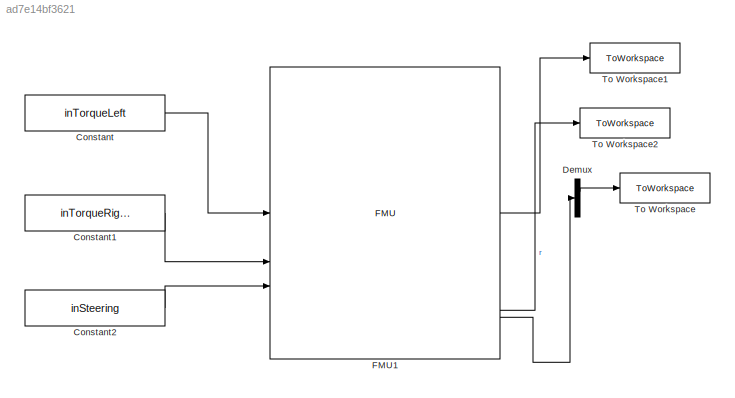
MODEL slx_ad7e14bf3621
KIND model
CONFIG AbsTol = auto
CONFIG EnableMultiTasking = off
CONFIG FixedStep = auto
CONFIG MaxStep = auto
CONFIG MinStep = auto
CONFIG RelTol = 1e-3
CONFIG SampleTimeConstraint = Unconstrained
CONFIG SolverName = VariableStepAuto
CONFIG StartTime = 0.0
CONFIG StopTime = 50
BLOCK [Constant] Constant
  Value = inTorqueLeft
BLOCK [Constant] Constant1
  Value = inTorqueRight
BLOCK [Constant] Constant2
  Value = inSteering
BLOCK [Demux] Demux
  Outputs = 2
BLOCK [FMU] FMU1
  FMUCachedDialogLayout = {"Geometry":[468,174,698,530],"ParameterColumnsWidthConfig":"{\"columns\":[{\"name\":\"Parameter\",\"width\":550},{\"name\":\"Value\",\"width\":462},{\"name\":\"Unit\",\"width\":438},{\"name\":\"Description\",\"width\":571}]}","InputColumnsWidthConfig":[],"OutputColumnsWidthConfig":"{\"columns\":[{\"name\":\"Name\",\"width\":558},{\"name\":\"Visibility\",\"width\":152},{\"name\":\"Start\",\"width\...<+85ch>
  FMUInitializeEnumObject = off
  FMUMode = ModelExchange
  FMUName = ThreeWheelVehicle3FMUpid.fmu
  MaskDisplay = disp('ThreeWheelVehicle3FMU');\nport_label('output',1,'outActualSteeringAngle');\nport_label('output',2,'outAngvLeft');\nport_label('output',3,'outAngvRight');\nport_label('output',4,'outCarAngularAcc');\nport_label('output',5,'outCarAngularVelocity');\nport_label('output',6,'outCarVelocity');\nport_label('output',7,'outForceFrontWheel');\nport_label('output',8,'outForceLeftWheel');\nport_label('output',9,...<+597ch>
  MaskPromptString = airResistanceLongitudinal|backLengthm|body2|c_rollFRolling resistance|c_rollLRolling resistance|c_rollRRolling resistance|dragCoefAir drag coefficient|front|front2|frontLengthm|frontTrail|frontWheel|gm/s2 Gravity|gearRatio|inertiaBodykgm2|inertiaWheelF|inertiaWheelL|inertiaWheelR|masskg|massCenterZm height to COM|muAF|muAL|muAR|muSF|muSL|muSR|neg|neg2|planarWorld|positionPhi|rear|rearLeft|rearLeft...<+2735ch>
  MaskType = ThreeWheelVehicle3FMU [Model Exchange, v2.0]
  MultithreadedSim = off
  airResistanceLongitudinal = struct('r',[0.0,1.0],'rho',1.18)
  backLength = Lr
  body2 = struct('I',1e-08,'m',0.1)
  body2_sphere_shapeType = sphere
  body_sphere_shapeType = sphere
  c_rollF = rollResF
  c_rollL = rollResL
  c_rollR = rollResR
  dragCoef = dragCoeff
  front = struct('r',[0.0],'width',0.2)
  front2 = struct('r',[1e-10,0.0])
  front2_cylinder_shapeType = cylinder
  frontLength = Lf
  frontTrail = struct('r',[0.0,-0.1])
  frontTrail_cylinder_shapeType = cylinder
  frontWheel = struct('diameter',0.1,'r',[0.0,1.0],'v0_roll',0.1)
  frontWheel_cylinder_shapeType = cylinder
  frontWheel_rim1_shapeType = cylinder
  frontWheel_rim2_shapeType = cylinder
  front_cylinder_shapeType = cylinder
  g = g
  gearRatio = gearRatio
  inertiaBody = Izz
  inertiaWheelF = inertiaF
  inertiaWheelL = inertiaL
  inertiaWheelR = inertiaR
  mass = mass
  massCenterZ = h
  muAF = muAF
  muAL = muAL
  muAR = muAR
  muSF = muSF
  muSL = muSL
  muSR = muSR
  neg = struct('k',-1.0)
  neg2 = struct('k',-1.0)
  planarWorld = struct('constantGravity',[0.0,0.0],'defaultFrameDiameterFraction',40.0,'defaultN_to_m',1000.0,'defaultNm_to_m',1000.0,'defaultSpecularCoefficient',0.7,'defaultWidthFraction',20.0,'defaultZPosition',0.0,'gravityArrowTail',[0.0,0.0],'nominalLength',1.0)
  planarWorld_label1 = x
  planarWorld_label2 = y
  positionPhi = struct('f_crit',50.0)
  rear = struct('r',[0.0],'width',0.2)
  rearLeft = struct('r',[0,0.0])
  rearLeftWheel = struct('diameter',0.1,'r',[0.0,1.0],'v0_roll',0.1)
  rearLeftWheel_cylinder_shapeType = cylinder
  rearLeftWheel_rim1_shapeType = cylinder
  rearLeftWheel_rim2_shapeType = cylinder
  rearLeft_cylinder_shapeType = cylinder
  rearRight = struct('r',[0,0.0])
  rearRightWheel = struct('diameter',0.1,'r',[0.0,1.0],'v0_roll',0.1)
  rearRightWheel_cylinder_shapeType = cylinder
  rearRightWheel_rim1_shapeType = cylinder
  rearRightWheel_rim2_shapeType = cylinder
  rearRight_cylinder_shapeType = cylinder
  rear_cylinder_shapeType = cylinder
  revolute_cylinder_shapeType = cylinder
  sAdF = sAdF
  sAdL = sAdL
  sAdR = sAdR
  sSlF = sSlF
  sSlL = sSlL
  sSlR = sSlR
  speedStart = 14
  turnRadiusMAX = 1000.0
  vAdF = vAdF
  vAdL = vAdL
  vAdR = vAdR
  vSlF = vSlF
  vSlL = vSlL
  vSlR = vSlR
  vehicleFrontArea = 1.5
  vehicleWidth = rearTrackWidth
  wheelRadiusF = wheelRadiusF
  wheelRadiusL = wheelRadiusL
  wheelRadiusR = wheelRadiusR
BLOCK [ToWorkspace] To Workspace
  FixptAsFi = on
  MaxDataPoints = inf
  SampleTime = -1
  SaveFormat = Timeseries
  VariableName = carVelocity
BLOCK [ToWorkspace] To Workspace1
  FixptAsFi = on
  MaxDataPoints = inf
  SampleTime = -1
  SaveFormat = Timeseries
  VariableName = steering
BLOCK [ToWorkspace] To Workspace2
  FixptAsFi = on
  MaxDataPoints = inf
  SampleTime = -1
  SaveFormat = Timeseries
  VariableName = angularVel
LINE Constant1:1 -> FMU1:2
LINE Constant2:1 -> FMU1:3
LINE Constant:1 -> FMU1:1
LINE Demux:1 -> To Workspace:1
LINE FMU1:1 -> To Workspace1:1
LINE FMU1:5 -> To Workspace2:1
LINE FMU1:6 -> Demux:1
